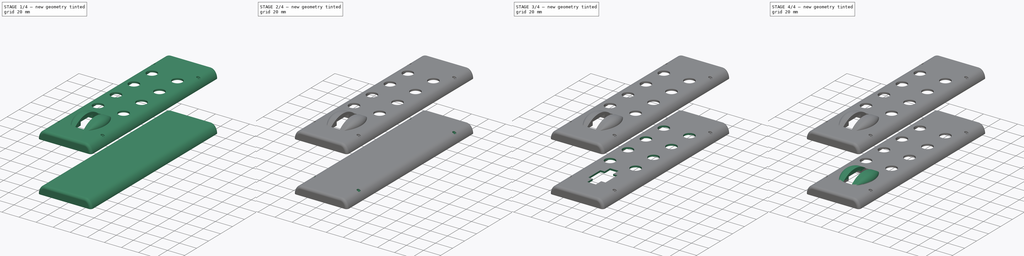
[diagram: build sequence overview — one tinted view per stage of 4, left to right]
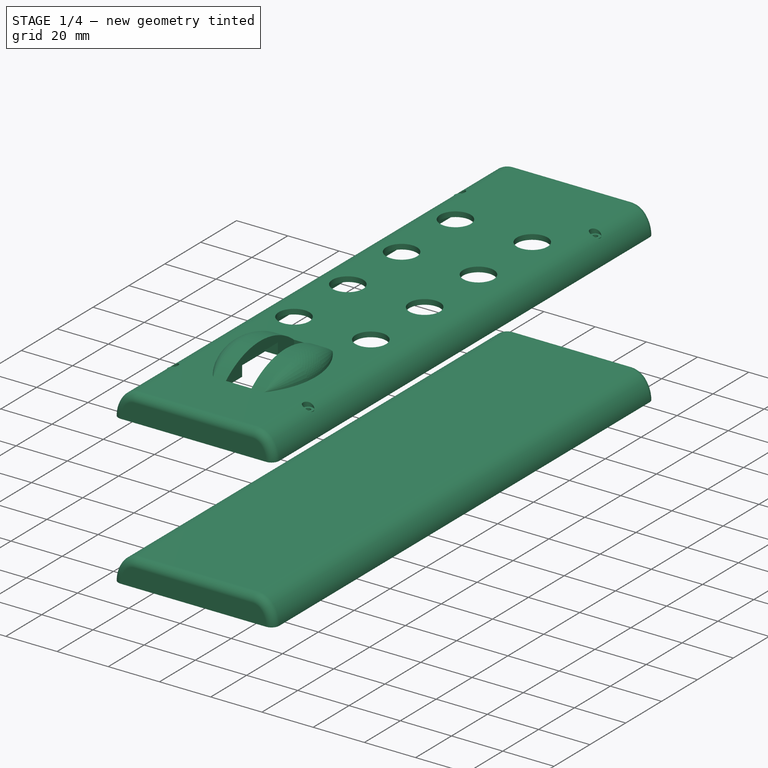
[diagram: stage 1 of 4 — iso view after this stage's code; geometry added in this stage tinted green]
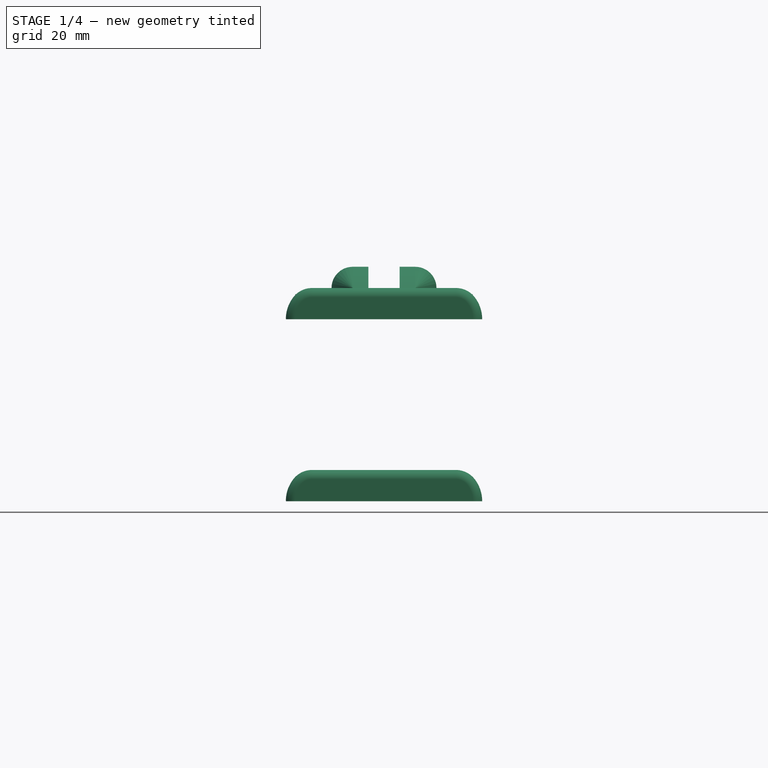
[diagram: stage 1 of 4 — front view after this stage's code; geometry added in this stage tinted green]
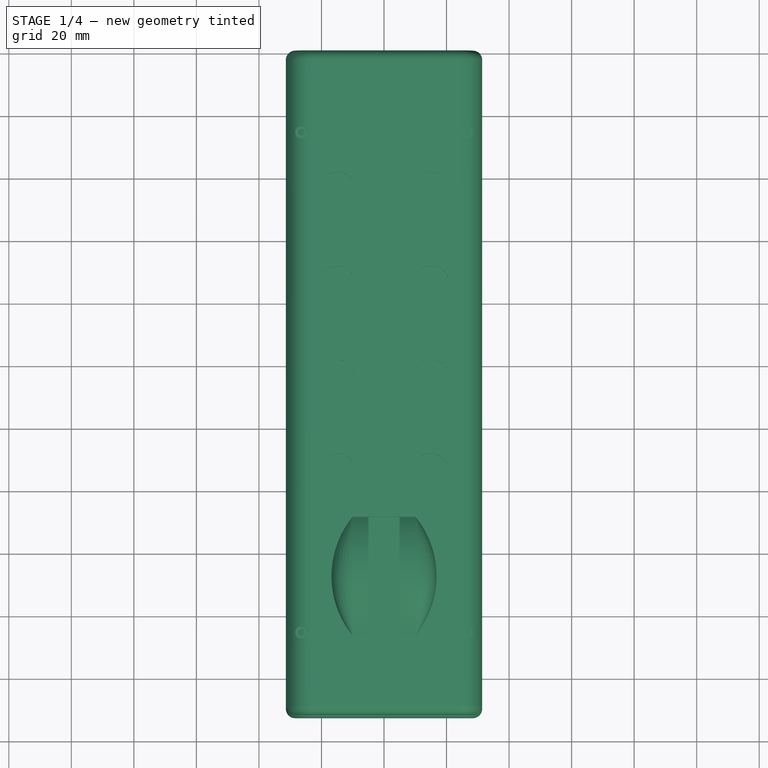
[diagram: stage 1 of 4 — top view after this stage's code; geometry added in this stage tinted green]
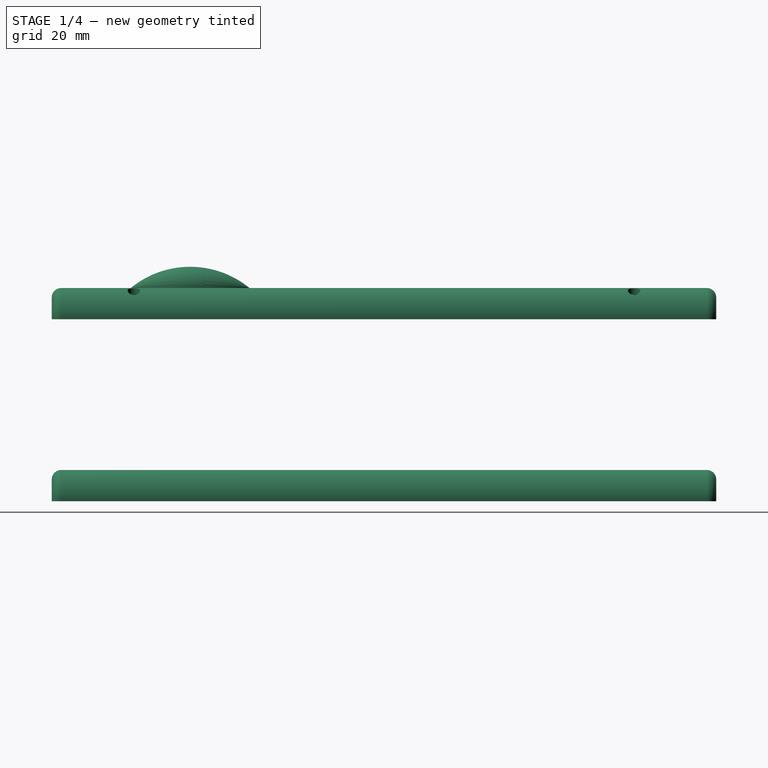
[diagram: stage 1 of 4 — right view after this stage's code; geometry added in this stage tinted green]
FCSTD DOCUMENT  (FreeCAD 0.20R28671 (Git))
Label: cubierta trasera
License: All rights reserved
LicenseURL: http://en.wikipedia.org/wiki/All_rights_reserved
objects: TechDraw::DrawViewDimension×24, Sketcher::SketchObject×10, PartDesign::Pocket×4, TechDraw::DrawViewAnnotation×4, PartDesign::Pad×3, TechDraw::DrawProjGroupItem×3, Part::Refine×2, TechDraw::DrawProjGroup×2, PartDesign::Fillet×1, PartDesign::Thickness×1, PartDesign::Plane×1, PartDesign::LinearPattern×1, PartDesign::Revolution×1, PartDesign::Mirrored×1, PartDesign::Body×1, TechDraw::DrawSVGTemplate×1, Part::FeaturePython×1, TechDraw::DrawViewBalloon×1, TechDraw::DrawViewSection×1, TechDraw::DrawViewClip×1, +2 more types
note: 37 computed .brp shape members not serialized (recipe doc carries the construction recipe); baked Part::Feature solids carry a one-line shape summary decoded from their .brp

FEATURE [Sketcher::SketchObject] Sketch
  FullyConstrained = true
  MapMode = 5
  Placement = pos=(0,0,0) rot=(1,0,0;1.5708rad)
  Support = -> [XZ_Plane]
  sketch-geometry (12):
    g0: LineSegment StartX=0 StartY=1.2153e-11 StartZ=0 EndX=-31.4 EndY=5.028e-13 EndZ=0
    g1: LineSegment StartX=0 StartY=1.2153e-11 StartZ=0 EndX=31.4 EndY=1.2153e-11 EndZ=0
    g2: LineSegment StartX=-23 StartY=10 StartZ=0 EndX=0 EndY=10 EndZ=0
    g3: LineSegment StartX=0 StartY=10 StartZ=0 EndX=23 EndY=10 EndZ=0
    g4: LineSegment StartX=-31.4 StartY=5.028e-13 StartZ=0 EndX=-28 EndY=0 EndZ=0
    g5: LineSegment StartX=-28 StartY=0 StartZ=0 EndX=-28 EndY=7 EndZ=0
    g6: ArcOfCircle CenterX=-23 CenterY=2.41173 CenterZ=0 NormalX=0 NormalY=0 NormalZ=1 AngleXU=0 Radius=7.58827 StartAngle=1.5708 EndAngle=2.49226
    g7: ArcOfCircle CenterX=-19.8231 CenterY=-1.6781e-06 CenterZ=0 NormalX=0 NormalY=0 NormalZ=1 AngleXU=0 Radius=11.5769 StartAngle=2.49226 EndAngle=3.14159
    g8: LineSegment StartX=-31.4 StartY=5.028e-13 StartZ=0 EndX=-31.4 EndY=7 EndZ=0
    g9: ArcOfCircle CenterX=23 CenterY=2.41173 CenterZ=0 NormalX=0 NormalY=0 NormalZ=1 AngleXU=0 Radius=7.58827 StartAngle=0.649332 EndAngle=1.5708
    g10: ArcOfCircle CenterX=19.8231 CenterY=7.13302e-06 CenterZ=0 NormalX=0 NormalY=0 NormalZ=1 AngleXU=0 Radius=11.5769 StartAngle=6.28318 EndAngle=6.93252
    g11: LineSegment StartX=31.4 StartY=1.2153e-11 StartZ=0 EndX=31.4 EndY=10 EndZ=0
  constraints (35):
    c: Coincident(g0,g-1)
    c: PointOnObject(g0,g-1)
    c: Coincident(g1,g0)
    c: Horizontal(g1)
    c: Equal(g1,g0)
    c: DistanceX(g0,g1) = 62.8
    c: Coincident(g3,g2)
    c: Horizontal(g3)
    c: Vertical(g0,g2)
    c: Equal(g2,g3)
    c: DistanceX(g2,g3) = 46
    c: DistanceY(g0,g2) = 10
    c: Horizontal(g2)
    c: Coincident(g4,g0)
    c: PointOnObject(g4,g0)
    c: Coincident(g5,g4)
    c: Vertical(g5)
    c: DistanceX(g0,g4) = 3.4
    c: DistanceY(g5,g5) = 7
    c: Tangent(g6,g2) = 1.5708
    c: Coincident(g7,g0)
    c: Horizontal(g6,g5)
    c: Tangent(g7,g6) = -1.5708
    c: Coincident(g8,g0)
    c: Vertical(g8)
    c: Tangent(g7,g8)
    c: Horizontal(g8,g5)
    c: Coincident(g10,g1)
    c: Tangent(g9,g3) = 1.5708
    c: Coincident(g11,g1)
    c: Vertical(g11)
    c: Horizontal(g11,g3)
    c: Tangent(g10,g11)
    c: Equal(g9,g6)
    c: Tangent(g9,g10) = -1.5708
FEATURE [PartDesign::Pad] Pad
  Direction = (0,-1,-2e-16)
  Length = 212.5
  Length2 = 100
  Placement = pos=(0,0,0) rot=(1,0,0;1.5708rad)
  Profile = -> Sketch
  Type = 0
FEATURE [PartDesign::Fillet] Fillet
  Base = -> Pad [Edge19,Edge18]
  BaseFeature = -> Pad
  Placement = pos=(0,0,0) rot=(1,0,0;1.5708rad)
  Radius = 3
  SupportTransform = false
  UseAllEdges = false
FEATURE [PartDesign::Body] Body
  Group = -> [Sketch,Pad,Fillet,Thickness,Sketch003,Sketch001,Pocket,DatumPlane,Sketch004,Pad001,Sketch005,Pocket001,LinearPattern,Sketch006,Pocket002,Sketch007,Pocket003,Sketch008,Pad002,Sketch009,Revolution,Mirrored]
  Origin = -> Origin
  Tip = -> Mirrored
FEATURE [Part::Refine] Body001
  Source = -> Body
FEATURE [TechDraw::DrawViewAnnotation] Annotation
  Font = osifont
  LineSpace = 80
  LockPosition = true
  MaxWidth = -1
  Rotation = 0
  ScaleType = 0
  Text = Vista A
  TextSize = 5
  TextStyle = 0
  X = 20
  Y = 18.902
FEATURE [TechDraw::DrawViewAnnotation] Annotation001
  Font = osifont
  LineSpace = 80
  LockPosition = true
  MaxWidth = -1
  Rotation = 0
  ScaleType = 0
  Text = Sección B-B'
  TextSize = 5
  TextStyle = 0
  X = 112
  Y = 58
FEATURE [TechDraw::DrawSVGTemplate] Template001
  EditableTexts = AUTHOR_NAME=Daniel García García; DATE=13-04-2022; DN=2; DOCUMENT_TYPE=Plano de Pieza; PN=1; REVISION=1; SCALE=1:1; SHEET=2/15; SIZE=A4; TITLELINE-1=Cubierta Trasera
  Height = 210
  Orientation = 1
  Width = 297
FEATURE [Part::FeaturePython] b_cubierta_trasera_001_001  label="cubierta trasera_002"  # a2plus imported part (geometry in sourceFile) (typed FeaturePython)
  Placement = pos=(0,0,58.1953) rot=(0,0,1;0rad)
  a2p_Version = V0.1
  fixedPosition = true
  objectType = a2pPart
  sourceFile = ./cubierta trasera.FCStd
  subassemblyImport = false
  timeLastImport = 1.64952e+09
  updateColors = true
FEATURE [Sketcher::SketchObject] Sketch010
  ExternalGeometry = -> [b_cubierta_trasera_001_001]
  FullyConstrained = true
  Placement = pos=(0,0,65) rot=(0,0,1;0rad)
  sketch-geometry (2):
    g0: LineSegment StartX=26.4 StartY=-26.25 StartZ=0 EndX=26.4 EndY=-186.25 EndZ=0
    g1: LineSegment StartX=26.4 StartY=-25.25 StartZ=0 EndX=26.4 EndY=-27.25 EndZ=0
  constraints (6):
    c: Coincident(g0,g-3)
    c: Coincident(g0,g-4)
    c: PointOnObject(g1,g-3)
    c: PointOnObject(g1,g0)
    c: Vertical(g1)
    c: PointOnObject(g1,g-3)
FEATURE [Part::Refine] b_cubierta_trasera_001_001001  label="cubierta trasera_003"
  Source = -> b_cubierta_trasera_001_001
FEATURE [TechDraw::DrawProjGroupItem] ProjItem  label="Front"
  CoarseView = false
  Direction = (-1,0,0)
  Focus = 100
  HardHidden = false
  IsoCount = 0
  IsoHidden = false
  IsoVisible = false
  LockPosition = true
  Perspective = false
  Rotation = 0
  RotationVector = (0,1,0)
  ScaleType = 2
  SeamHidden = false
  SeamVisible = true
  SmoothHidden = false
  SmoothVisible = true
  Source = -> [b_cubierta_trasera_001_001001,Sketch010]
  Type = 0
  X = 0
  XDirection = (0,1,0)
  Y = 0
FEATURE [TechDraw::DrawViewBalloon] Balloon
  BubbleShape = 0
  EndType = 0
  EndTypeScale = 1
  KinkLength = 5
  LockPosition = false
  OriginX = -110
  OriginY = 5
  Rotation = 0
  ScaleType = 0
  ShapeScale = 1
  SourceView = -> ProjItem
  Text = A
  TextWrapLen = -1
  X = -137.481
  Y = 5.3198
FEATURE [TechDraw::DrawViewDimension] Dimension001
  AngleOverride = false
  Arbitrary = false
  ArbitraryTolerances = false
  EqualTolerance = true
  ExtensionAngle = 0
  FormatSpec = %.2w
  FormatSpecOverTolerance = %+.2w
  FormatSpecUnderTolerance = %+.2w
  Inverted = false
  LineAngle = 0
  LockPosition = false
  MeasureType = 1
  OverTolerance = 0
  References2D = -> [ProjItem]
  Rotation = 0
  ScaleType = 0
  TheoreticalExact = false
  Type = 1
  UnderTolerance = 0
  X = -0.949436
  Y = 20.0692
FEATURE [TechDraw::DrawViewDimension] Dimension007
  AngleOverride = false
  Arbitrary = false
  ArbitraryTolerances = false
  EqualTolerance = true
  ExtensionAngle = 0
  FormatSpec = R%.2w
  FormatSpecOverTolerance = %+.2w
  FormatSpecUnderTolerance = %+.2w
  Inverted = false
  LineAngle = 0
  LockPosition = false
  MeasureType = 1
  OverTolerance = 0
  References2D = -> [ProjItem]
  Rotation = 0
  ScaleType = 0
  TheoreticalExact = false
  Type = 4
  UnderTolerance = 0
  X = -34.0907
  Y = -8.95603
FEATURE [TechDraw::DrawViewDimension] Dimension019
  AngleOverride = false
  Arbitrary = false
  ArbitraryTolerances = false
  EqualTolerance = true
  ExtensionAngle = 0
  FormatSpec = %.2w
  FormatSpecOverTolerance = %+.2w
  FormatSpecUnderTolerance = %+.2w
  Inverted = false
  LineAngle = 0
  LockPosition = false
  MeasureType = 1
  OverTolerance = 0
  References2D = -> [ProjItem]
  Rotation = 0
  ScaleType = 0
  TheoreticalExact = false
  Type = 1
  UnderTolerance = 0
  X = -91.0139
  Y = -19.964
FEATURE [TechDraw::DrawViewDimension] Dimension021
  AngleOverride = false
  Arbitrary = false
  ArbitraryTolerances = false
  EqualTolerance = true
  ExtensionAngle = 0
  FormatSpec = %.2w
  FormatSpecOverTolerance = %+.2w
  FormatSpecUnderTolerance = %+.2w
  Inverted = false
  LineAngle = 0
  LockPosition = false
  MeasureType = 1
  OverTolerance = 0
  References2D = -> [ProjItem]
  Rotation = 0
  ScaleType = 0
  TheoreticalExact = false
  Type = 2
  UnderTolerance = 0
  X = 115.769
  Y = 5.89131
FEATURE [TechDraw::DrawViewDimension] Dimension022
  AngleOverride = false
  Arbitrary = false
  ArbitraryTolerances = false
  EqualTolerance = true
  ExtensionAngle = 0
  FormatSpec = ∅%.2w
  FormatSpecOverTolerance = %+.2w
  FormatSpecUnderTolerance = %+.2w
  Inverted = false
  LineAngle = 0
  LockPosition = false
  MeasureType = 1
  OverTolerance = 0
  References2D = -> [ProjItem]
  Rotation = 0
  ScaleType = 0
  TheoreticalExact = false
  Type = 1
  UnderTolerance = 0
  X = -86.4268
  Y = -7.9974
FEATURE [TechDraw::DrawViewDimension] Dimension023
  AngleOverride = false
  Arbitrary = false
  ArbitraryTolerances = false
  EqualTolerance = true
  ExtensionAngle = 0
  FormatSpec = ∅%.2w
  FormatSpecOverTolerance = %+.2w
  FormatSpecUnderTolerance = %+.2w
  Inverted = false
  LineAngle = 0
  LockPosition = false
  MeasureType = 1
  OverTolerance = 0
  References2D = -> [ProjItem]
  Rotation = 0
  ScaleType = 0
  TheoreticalExact = false
  Type = 1
  UnderTolerance = 0
  X = 86.4223
  Y = -4.07236
FEATURE [TechDraw::DrawViewDimension] Dimension024
  AngleOverride = false
  Arbitrary = false
  ArbitraryTolerances = false
  EqualTolerance = true
  ExtensionAngle = 0
  FormatSpec = %.2w
  FormatSpecOverTolerance = %+.2w
  FormatSpecUnderTolerance = %+.2w
  Inverted = false
  LineAngle = 0
  LockPosition = false
  MeasureType = 1
  OverTolerance = 0
  References2D = -> [ProjItem]
  Rotation = 0
  ScaleType = 0
  TheoreticalExact = false
  Type = 1
  UnderTolerance = 0
  X = -0.722632
  Y = -19.982
FEATURE [TechDraw::DrawProjGroupItem] ProjItem001  label="Top"
  CoarseView = false
  Direction = (0,0,-1)
  Focus = 100
  HardHidden = true
  IsoCount = 0
  IsoHidden = true
  IsoVisible = false
  LockPosition = true
  Perspective = false
  Rotation = 0
  RotationVector = (1,0,0)
  ScaleType = 2
  SeamHidden = true
  SeamVisible = true
  SmoothHidden = true
  SmoothVisible = true
  Source = -> [b_cubierta_trasera_001_001001]
  Type = 4
  X = 0
  XDirection = (0,1,0)
  Y = -70.4246
FEATURE [TechDraw::DrawViewDimension] Dimension
  AngleOverride = false
  Arbitrary = false
  ArbitraryTolerances = false
  EqualTolerance = true
  ExtensionAngle = 0
  FormatSpec = %.2w
  FormatSpecOverTolerance = %+.2w
  FormatSpecUnderTolerance = %+.2w
  Inverted = false
  LineAngle = 0
  LockPosition = false
  MeasureType = 1
  OverTolerance = 0
  References2D = -> [ProjItem001]
  Rotation = 0
  ScaleType = 0
  TheoreticalExact = false
  Type = 2
  UnderTolerance = 0
  X = -125.564
  Y = -2.88014
FEATURE [TechDraw::DrawViewDimension] Dimension002
  AngleOverride = false
  Arbitrary = false
  ArbitraryTolerances = false
  EqualTolerance = true
  ExtensionAngle = 0
  FormatSpec = ⌀%.2w
  FormatSpecOverTolerance = %+.2w
  FormatSpecUnderTolerance = %+.2w
  Inverted = false
  LineAngle = 0
  LockPosition = false
  MeasureType = 1
  OverTolerance = 0
  References2D = -> [ProjItem001]
  Rotation = 0
  ScaleType = 0
  TheoreticalExact = false
  Type = 5
  UnderTolerance = 0
  X = -14.2415
  Y = 10.2245
FEATURE [TechDraw::DrawViewDimension] Dimension003
  AngleOverride = false
  Arbitrary = false
  ArbitraryTolerances = false
  EqualTolerance = true
  ExtensionAngle = 0
  FormatSpec = %.2w
  FormatSpecOverTolerance = %+.2w
  FormatSpecUnderTolerance = %+.2w
  Inverted = false
  LineAngle = 0
  LockPosition = false
  MeasureType = 1
  OverTolerance = 0
  References2D = -> [ProjItem001]
  Rotation = 0
  ScaleType = 0
  TheoreticalExact = false
  Type = 1
  UnderTolerance = 0
  X = -61.6559
  Y = 3.63404
FEATURE [TechDraw::DrawViewDimension] Dimension004
  AngleOverride = false
  Arbitrary = false
  ArbitraryTolerances = false
  EqualTolerance = true
  ExtensionAngle = 0
  FormatSpec = %.2w
  FormatSpecOverTolerance = %+.2w
  FormatSpecUnderTolerance = %+.2w
  Inverted = false
  LineAngle = 0
  LockPosition = false
  MeasureType = 1
  OverTolerance = 0
  References2D = -> [ProjItem001]
  Rotation = 0
  ScaleType = 0
  TheoreticalExact = false
  Type = 2
  UnderTolerance = 0
  X = -39.1789
  Y = -5.3663
FEATURE [TechDraw::DrawViewDimension] Dimension005
  AngleOverride = false
  Arbitrary = false
  ArbitraryTolerances = false
  EqualTolerance = true
  ExtensionAngle = 0
  FormatSpec = %.2w
  FormatSpecOverTolerance = %+.2w
  FormatSpecUnderTolerance = %+.2w
  Inverted = false
  LineAngle = 0
  LockPosition = false
  MeasureType = 1
  OverTolerance = 0
  References2D = -> [ProjItem001]
  Rotation = 0
  ScaleType = 0
  TheoreticalExact = false
  Type = 2
  UnderTolerance = 0
  X = -85.8485
  Y = 2.16562
FEATURE [TechDraw::DrawViewDimension] Dimension006
  AngleOverride = false
  Arbitrary = false
  ArbitraryTolerances = false
  EqualTolerance = true
  ExtensionAngle = 0
  FormatSpec = %.2w
  FormatSpecOverTolerance = %+.2w
  FormatSpecUnderTolerance = %+.2w
  Inverted = false
  LineAngle = 0
  LockPosition = false
  MeasureType = 1
  OverTolerance = 0
  References2D = -> [ProjItem001]
  Rotation = 0
  ScaleType = 0
  TheoreticalExact = false
  Type = 1
  UnderTolerance = 0
  X = -62.6251
  Y = 22.7719
FEATURE [TechDraw::DrawViewDimension] Dimension008
  AngleOverride = false
  Arbitrary = false
  ArbitraryTolerances = false
  EqualTolerance = true
  ExtensionAngle = 0
  FormatSpec = R%.2w
  FormatSpecOverTolerance = %+.2w
  FormatSpecUnderTolerance = %+.2w
  Inverted = false
  LineAngle = 0
  LockPosition = false
  MeasureType = 1
  OverTolerance = 0
  References2D = -> [ProjItem001]
  Rotation = 0
  ScaleType = 0
  TheoreticalExact = false
  Type = 4
  UnderTolerance = 0
  X = -89.2714
  Y = -15.8897
FEATURE [TechDraw::DrawViewDimension] Dimension009
  AngleOverride = false
  Arbitrary = false
  ArbitraryTolerances = false
  EqualTolerance = true
  ExtensionAngle = 0
  FormatSpec = R%.2w
  FormatSpecOverTolerance = %+.2w
  FormatSpecUnderTolerance = %+.2w
  Inverted = false
  LineAngle = 0
  LockPosition = false
  MeasureType = 1
  OverTolerance = 0
  References2D = -> [ProjItem001]
  Rotation = 0
  ScaleType = 0
  TheoreticalExact = false
  Type = 4
  UnderTolerance = 0
  X = -115.379
  Y = -19.6926
FEATURE [TechDraw::DrawViewDimension] Dimension010
  AngleOverride = false
  Arbitrary = false
  ArbitraryTolerances = false
  EqualTolerance = true
  ExtensionAngle = 0
  FormatSpec = %.2w
  FormatSpecOverTolerance = %+.2w
  FormatSpecUnderTolerance = %+.2w
  Inverted = false
  LineAngle = 0
  LockPosition = false
  MeasureType = 1
  OverTolerance = 0
  References2D = -> [ProjItem001]
  Rotation = 0
  ScaleType = 0
  TheoreticalExact = false
  Type = 2
  UnderTolerance = 0
  X = 76.4726
  Y = 1.05548
FEATURE [TechDraw::DrawViewDimension] Dimension011
  AngleOverride = false
  Arbitrary = false
  ArbitraryTolerances = false
  EqualTolerance = true
  ExtensionAngle = 0
  FormatSpec = %.2w
  FormatSpecOverTolerance = %+.2w
  FormatSpecUnderTolerance = %+.2w
  Inverted = false
  LineAngle = 0
  LockPosition = false
  MeasureType = 1
  OverTolerance = 0
  References2D = -> [ProjItem001]
  Rotation = 0
  ScaleType = 0
  TheoreticalExact = false
  Type = 1
  UnderTolerance = 0
  X = 45.3833
  Y = 6.14342
FEATURE [TechDraw::DrawViewDimension] Dimension012
  AngleOverride = false
  Arbitrary = false
  ArbitraryTolerances = false
  EqualTolerance = true
  ExtensionAngle = 0
  FormatSpec = %.2w
  FormatSpecOverTolerance = %+.2w
  FormatSpecUnderTolerance = %+.2w
  Inverted = false
  LineAngle = 0
  LockPosition = false
  MeasureType = 1
  OverTolerance = 0
  References2D = -> [ProjItem001]
  Rotation = 0
  ScaleType = 0
  TheoreticalExact = false
  Type = 2
  UnderTolerance = 0
  X = 115.186
  Y = 26.5667
FEATURE [TechDraw::DrawViewDimension] Dimension013
  AngleOverride = false
  Arbitrary = false
  ArbitraryTolerances = false
  EqualTolerance = true
  ExtensionAngle = 0
  FormatSpec = %.2w
  FormatSpecOverTolerance = %+.2w
  FormatSpecUnderTolerance = %+.2w
  Inverted = false
  LineAngle = 0
  LockPosition = false
  MeasureType = 1
  OverTolerance = 0
  References2D = -> [ProjItem001]
  Rotation = 0
  ScaleType = 0
  TheoreticalExact = false
  Type = 1
  UnderTolerance = 0
  X = 82.2848
  Y = 44.181
FEATURE [TechDraw::DrawViewDimension] Dimension014
  AngleOverride = false
  Arbitrary = false
  ArbitraryTolerances = false
  EqualTolerance = true
  ExtensionAngle = 0
  FormatSpec = %.2w
  FormatSpecOverTolerance = %+.2w
  FormatSpecUnderTolerance = %+.2w
  Inverted = false
  LineAngle = 0
  LockPosition = false
  MeasureType = 1
  OverTolerance = 0
  References2D = -> [ProjItem001]
  Rotation = 0
  ScaleType = 0
  TheoreticalExact = false
  Type = 2
  UnderTolerance = 0
  X = 89.2596
  Y = 2.5
FEATURE [TechDraw::DrawViewDimension] Dimension020
  AngleOverride = false
  Arbitrary = false
  ArbitraryTolerances = false
  EqualTolerance = true
  ExtensionAngle = 0
  FormatSpec = %.2w
  FormatSpecOverTolerance = %+.2w
  FormatSpecUnderTolerance = %+.2w
  Inverted = false
  LineAngle = 0
  LockPosition = false
  MeasureType = 1
  OverTolerance = 0
  References2D = -> [ProjItem001]
  Rotation = 0
  ScaleType = 0
  TheoreticalExact = false
  Type = 2
  UnderTolerance = 0
  X = -94.6134
  Y = 2.01849
FEATURE [TechDraw::DrawProjGroup] ProjGroup
  Anchor = -> ProjItem
  AutoDistribute = true
  LockPosition = true
  ProjectionType = 0
  Rotation = 0
  ScaleType = 0
  Source = -> [b_cubierta_trasera_001_001001]
  Views = -> [ProjItem,ProjItem001]
  X = 161.17
  Y = 171.195
  spacingX = 15
  spacingY = 15
FEATURE [TechDraw::DrawProjGroupItem] ProjItem002  label="Vista A"
  CoarseView = false
  Direction = (1e-16,-1,0)
  Focus = 100
  HardHidden = false
  IsoCount = 0
  IsoHidden = false
  IsoVisible = false
  LockPosition = true
  Perspective = false
  Rotation = 0
  RotationVector = (0,1,0)
  ScaleType = 2
  SeamHidden = false
  SeamVisible = true
  SmoothHidden = false
  SmoothVisible = true
  Source = -> [b_cubierta_trasera_001_001001]
  Type = 0
  X = 0
  XDirection = (1,1e-16,0)
  Y = 0
FEATURE [TechDraw::DrawViewDimension] Dimension025
  AngleOverride = false
  Arbitrary = false
  ArbitraryTolerances = false
  EqualTolerance = true
  ExtensionAngle = 0
  FormatSpec = %.2w
  FormatSpecOverTolerance = %+.2w
  FormatSpecUnderTolerance = %+.2w
  Inverted = false
  LineAngle = 0
  LockPosition = false
  MeasureType = 1
  OverTolerance = 0
  References2D = -> [ProjItem002]
  Rotation = 0
  ScaleType = 0
  TheoreticalExact = false
  Type = 1
  UnderTolerance = 0
  X = -3.87982
  Y = 16.1102
FEATURE [TechDraw::DrawProjGroup] ProjGroup001
  Anchor = -> ProjItem002
  AutoDistribute = true
  LockPosition = true
  ProjectionType = 0
  Rotation = 0
  ScaleType = 0
  Source = -> [b_cubierta_trasera_001_001001]
  Views = -> [ProjItem002]
  X = 45
  Y = 38
  spacingX = 15
  spacingY = 15
FEATURE [TechDraw::DrawViewSection] SectionView  label="Section B - B"
  BaseView = -> ProjItem002
  CoarseView = false
  CutSurfaceDisplay = 2
  Direction = (-1,-1e-16,0)
  FileGeomPattern = <path>
  FileHatchPattern = <path>
  Focus = 100
  FuseBeforeCut = false
  HardHidden = false
  HatchScale = 1
  IsoCount = 0
  IsoHidden = false
  IsoVisible = false
  LockPosition = true
  NameGeomPattern = Diamante
  Perspective = false
  Rotation = 0
  ScaleType = 2
  SeamHidden = false
  SeamVisible = true
  SectionDirection = 0
  SectionNormal = (-1,-1e-16,0)
  SectionOrigin = (8,-106.25,65.59)
  SectionSymbol = B
  SmoothHidden = false
  SmoothVisible = true
  Source = -> [b_cubierta_trasera_001_001001]
  X = -62
  XDirection = (1e-16,-1,0)
  Y = 0
FEATURE [TechDraw::DrawViewDimension] Dimension026
  AngleOverride = false
  Arbitrary = false
  ArbitraryTolerances = false
  EqualTolerance = true
  ExtensionAngle = 0
  FormatSpec = %.2w
  FormatSpecOverTolerance = %+.2w
  FormatSpecUnderTolerance = %+.2w
  Inverted = false
  LineAngle = 0
  LockPosition = false
  MeasureType = 1
  OverTolerance = 0
  References2D = -> [SectionView]
  Rotation = 0
  ScaleType = 0
  TheoreticalExact = false
  Type = 2
  UnderTolerance = 0
  X = 82.195
  Y = 12.6113
FEATURE [TechDraw::DrawViewDimension] Dimension027
  AngleOverride = false
  Arbitrary = false
  ArbitraryTolerances = false
  EqualTolerance = true
  ExtensionAngle = 0
  FormatSpec = %.2w
  FormatSpecOverTolerance = %+.2w
  FormatSpecUnderTolerance = %+.2w
  Inverted = false
  LineAngle = 0
  LockPosition = false
  MeasureType = 1
  OverTolerance = 0
  References2D = -> [SectionView]
  Rotation = 0
  ScaleType = 0
  TheoreticalExact = false
  Type = 2
  UnderTolerance = 0
  X = 40.0902
  Y = 10.8758
FEATURE [TechDraw::DrawViewClip] Clip
  Height = 30
  LockPosition = true
  Rotation = 0
  ScaleType = 0
  ShowFrame = false
  Views = -> [SectionView]
  Width = 55
  X = 112
  Y = 38
FEATURE [TechDraw::DrawViewAnnotation] Annotation002
  Font = osifont
  LineSpace = 80
  LockPosition = false
  MaxWidth = -1
  Rotation = 0
  ScaleType = 0
  Text = Default Text
  TextSize = 5
  TextStyle = 0
  X = 201.008
  Y = 54.8431
FEATURE [TechDraw::DrawViewSymbol] Symbol
  LockPosition = false
  Rotation = 0
  Scale = 0.3
  ScaleType = 2
  Symbol = <blob: 2444 chars omitted>
  X = 217.487
  Y = 36.9001
FEATURE [TechDraw::DrawViewAnnotation] Annotation003
  Font = osifont
  LineSpace = 80
  LockPosition = false
  MaxWidth = -1
  Rotation = 0
  ScaleType = 0
  Text = '
  TextSize = 5
  TextStyle = 0
  X = 55.7407
  Y = 9.80915
FEATURE [TechDraw::DrawPage] Page001  label="Cubierta Trasera"
  KeepUpdated = true
  NextBalloonIndex = 4
  ProjectionType = 0
  Template = -> Template001
  Views = -> [ProjGroup,Dimension,Dimension001,Dimension002,Dimension003,Dimension004,Dimension005,Dimension006,Dimension007,Dimension008,Dimension009,Dimension010,Dimension011,Dimension012,Dimension013,Dimension014,Dimension019,Dimension020,Dimension021,Dimension022,Dimension023,Dimension024,ProjGroup001,Balloon,Dimension025,SectionView,Clip,Annotation,Annotation001,Dimension026,Dimension027,Symbol,+1 more]
note: 2 file-system paths scrubbed to <path> (originals preserved in the JSON sidecar)
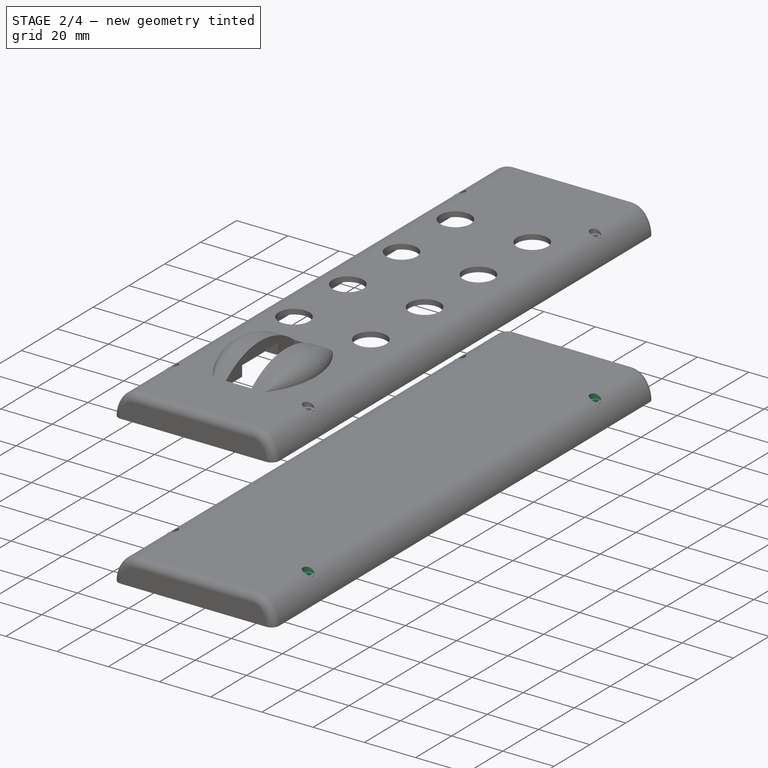
[diagram: stage 2 of 4 — iso view after this stage's code; geometry added in this stage tinted green]
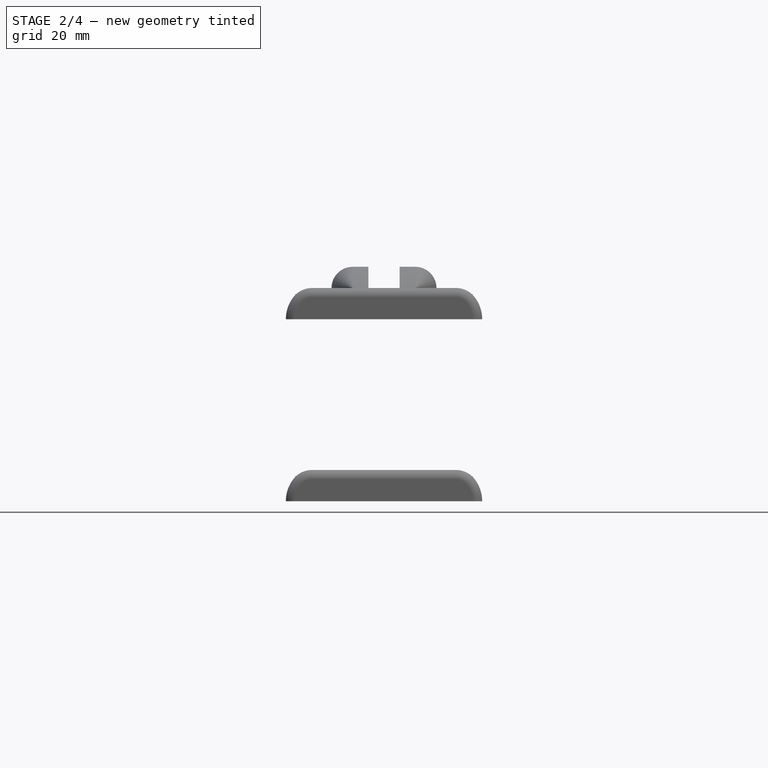
[diagram: stage 2 of 4 — front view after this stage's code; geometry added in this stage tinted green]
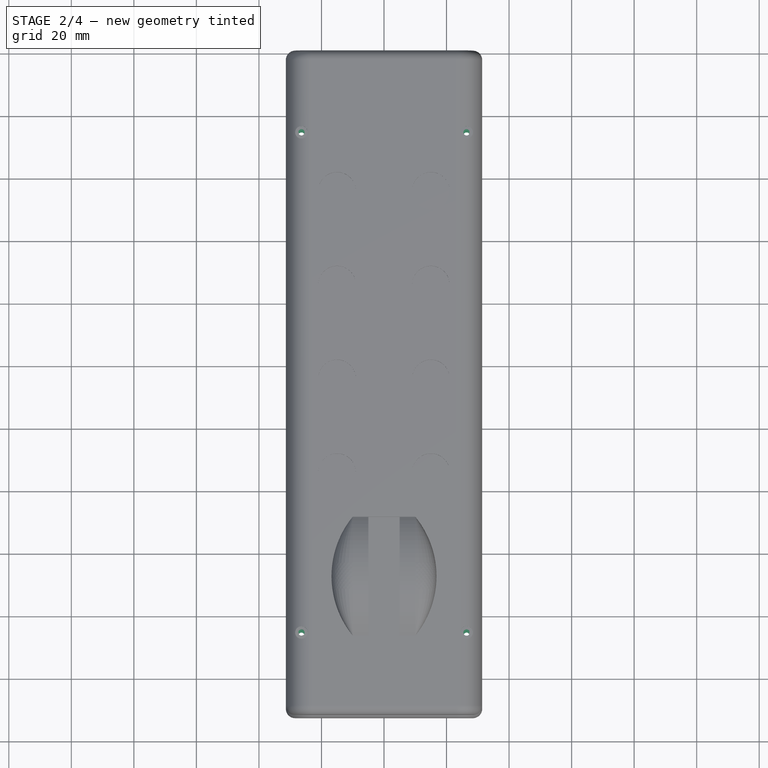
[diagram: stage 2 of 4 — top view after this stage's code; geometry added in this stage tinted green]
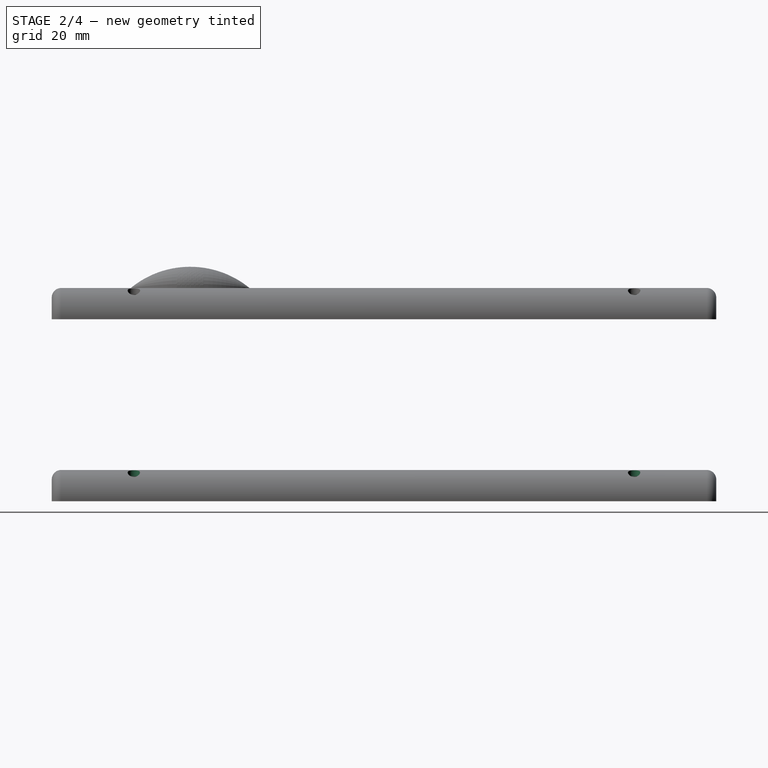
[diagram: stage 2 of 4 — right view after this stage's code; geometry added in this stage tinted green]
FEATURE [PartDesign::Thickness] Thickness
  Base = -> Fillet [Face7,Face1]
  BaseFeature = -> Fillet
  Intersection = false
  Join = 0
  Mode = 0
  Reversed = true
  SupportTransform = false
  Value = 2
FEATURE [Sketcher::SketchObject] Sketch003
  ExternalGeometry = -> [Thickness]
  FullyConstrained = true
  MapMode = 5
  Placement = pos=(0,0,1.2153e-11) rot=(1,0,0;3.14159rad)
  Support = -> [Thickness]
  sketch-geometry (6):
    g0: LineSegment StartX=-31.4 StartY=191.25 StartZ=0 EndX=31.4 EndY=191.25 EndZ=0
    g1: LineSegment StartX=31.4 StartY=191.25 StartZ=0 EndX=31.4 EndY=21.25 EndZ=0
    g2: LineSegment StartX=31.4 StartY=21.25 StartZ=0 EndX=-31.4 EndY=21.25 EndZ=0
    g3: LineSegment StartX=-31.4 StartY=21.25 StartZ=0 EndX=-31.4 EndY=191.25 EndZ=0
    g4: LineSegment StartX=0 StartY=212.5 StartZ=0 EndX=0 EndY=191.25 EndZ=0
    g5: LineSegment StartX=0 StartY=0 StartZ=0 EndX=0 EndY=21.25 EndZ=0
  constraints (18):
    c: Coincident(g0,g1)
    c: Coincident(g1,g2)
    c: Coincident(g2,g3)
    c: Coincident(g3,g0)
    c: Horizontal(g0)
    c: Horizontal(g2)
    c: Vertical(g1)
    c: Vertical(g3)
    c: PointOnObject(g0,g-4)
    c: PointOnObject(g1,g-5)
    c: Coincident(g4,g-3)
    c: PointOnObject(g4,g0)
    c: Vertical(g4)
    c: Coincident(g5,g-1)
    c: PointOnObject(g5,g2)
    c: Vertical(g5)
    c: Equal(g4,g5)
    c: DistanceY(g1,g0) = 170
FEATURE [Sketcher::SketchObject] Sketch001
  ExternalGeometry = -> [Thickness,Sketch003]
  FullyConstrained = true
  MapMode = 5
  Placement = pos=(0,0,1.2153e-11) rot=(1,0,0;3.14159rad)
  Support = -> [Thickness]
  sketch-geometry (12):
    g0: LineSegment StartX=-31.4 StartY=186.25 StartZ=0 EndX=-26.4 EndY=186.25 EndZ=0
    g1: LineSegment StartX=-26.4 StartY=186.25 StartZ=0 EndX=-26.4 EndY=191.25 EndZ=0
    g2: LineSegment StartX=26.4 StartY=191.25 StartZ=0 EndX=26.4 EndY=186.25 EndZ=0
    g3: LineSegment StartX=26.4 StartY=186.25 StartZ=0 EndX=31.4 EndY=186.25 EndZ=0
    g4: LineSegment StartX=-31.4 StartY=26.25 StartZ=0 EndX=-26.4 EndY=26.25 EndZ=0
    g5: LineSegment StartX=-26.4 StartY=26.25 StartZ=0 EndX=-26.4 EndY=21.25 EndZ=0
    g6: LineSegment StartX=26.4 StartY=21.25 StartZ=0 EndX=26.4 EndY=26.25 EndZ=0
    g7: LineSegment StartX=26.4 StartY=26.25 StartZ=0 EndX=31.4 EndY=26.25 EndZ=0
    g8: Circle CenterX=-26.4 CenterY=186.25 CenterZ=0 NormalX=0 NormalY=0 NormalZ=1 AngleXU=0 Radius=2
    g9: Circle CenterX=26.4 CenterY=186.25 CenterZ=0 NormalX=0 NormalY=0 NormalZ=1 AngleXU=0 Radius=2
    g10: Circle CenterX=-26.4 CenterY=26.25 CenterZ=0 NormalX=0 NormalY=0 NormalZ=1 AngleXU=0 Radius=2
    g11: Circle CenterX=26.4 CenterY=26.25 CenterZ=0 NormalX=0 NormalY=0 NormalZ=1 AngleXU=0 Radius=2
  constraints (36):
    c: PointOnObject(g0,g-5)
    c: PointOnObject(g3,g-6)
    c: PointOnObject(g7,g-6)
    c: PointOnObject(g4,g-5)
    c: Vertical(g5)
    c: Horizontal(g4)
    c: Vertical(g6)
    c: Horizontal(g7)
    c: Vertical(g1)
    c: Horizontal(g0)
    c: Horizontal(g3)
    c: Vertical(g2)
    c: Coincident(g9,g2)
    c: Coincident(g9,g3)
    c: Coincident(g1,g8)
    c: Coincident(g0,g8)
    c: Coincident(g10,g4)
    c: Coincident(g10,g5)
    c: Coincident(g11,g6)
    c: Coincident(g11,g7)
    c: Equal(g7,g6)
    c: Equal(g6,g5)
    c: Equal(g5,g4)
    c: Equal(g4,g3)
    c: Equal(g3,g2)
    c: Equal(g2,g1)
    c: Equal(g1,g0)
    c: DistanceY(g1,g1) = 5
    c: Equal(g8,g9)
    c: Equal(g9,g11)
    c: Equal(g11,g10)
    c: Diameter(g10) = 4
    c: PointOnObject(g5,g-9)
    c: PointOnObject(g6,g-9)
    c: PointOnObject(g1,g-10)
    c: PointOnObject(g2,g-10)
FEATURE [PartDesign::Pocket] Pocket
  BaseFeature = -> Thickness
  Direction = (1,1,1)
  Length = 5
  Length2 = 100
  Profile = -> Sketch001
  Type = 1
FEATURE [PartDesign::Plane] DatumPlane
  AttachmentOffset = pos=(0,0,-7) rot=(0,0,1;0rad)
  Length = 87.2254
  MapMode = 5
  Placement = pos=(-2.5971e-12,0,7) rot=(1,0,0;3.14159rad)
  ResizeMode = 0
  Support = -> [Pocket]
  Width = 261.925
FEATURE [Sketcher::SketchObject] Sketch004
  ExternalGeometry = -> [Pocket]
  FullyConstrained = true
  MapMode = 5
  Placement = pos=(-2.5971e-12,0,7) rot=(1,0,0;3.14159rad)
  Support = -> [DatumPlane]
  sketch-geometry (8):
    g0: Circle CenterX=-26.4 CenterY=186.25 CenterZ=0 NormalX=0 NormalY=0 NormalZ=1 AngleXU=0 Radius=2
    g1: Circle CenterX=26.4 CenterY=186.25 CenterZ=0 NormalX=0 NormalY=0 NormalZ=1 AngleXU=0 Radius=2
    g2: Circle CenterX=-26.4 CenterY=26.25 CenterZ=0 NormalX=0 NormalY=0 NormalZ=1 AngleXU=0 Radius=2
    g3: Circle CenterX=26.4 CenterY=26.25 CenterZ=0 NormalX=0 NormalY=0 NormalZ=1 AngleXU=0 Radius=2
    g4: Circle CenterX=26.4 CenterY=26.25 CenterZ=0 NormalX=0 NormalY=0 NormalZ=1 AngleXU=0 Radius=1
    g5: Circle CenterX=-26.4 CenterY=26.25 CenterZ=0 NormalX=0 NormalY=0 NormalZ=1 AngleXU=0 Radius=1
    g6: Circle CenterX=-26.4 CenterY=186.25 CenterZ=0 NormalX=0 NormalY=0 NormalZ=1 AngleXU=0 Radius=1
    g7: Circle CenterX=26.4 CenterY=186.25 CenterZ=0 NormalX=0 NormalY=0 NormalZ=1 AngleXU=0 Radius=1
  constraints (20):
    c: PointOnObject(g-8,g0)
    c: PointOnObject(g-8,g0)
    c: PointOnObject(g-7,g0)
    c: PointOnObject(g-10,g1)
    c: PointOnObject(g-9,g1)
    c: PointOnObject(g-10,g1)
    c: PointOnObject(g-3,g2)
    c: PointOnObject(g-4,g2)
    c: PointOnObject(g-4,g2)
    c: PointOnObject(g-5,g3)
    c: PointOnObject(g-6,g3)
    c: PointOnObject(g-5,g3)
    c: Coincident(g4,g3)
    c: Coincident(g5,g2)
    c: Coincident(g6,g0)
    c: Coincident(g7,g1)
    c: Equal(g6,g7)
    c: Equal(g7,g4)
    c: Equal(g4,g5)
    c: Diameter(g5) = 2
FEATURE [PartDesign::Pad] Pad001
  BaseFeature = -> Pocket
  Direction = (3.71e-13,0,-1)
  Length = 1
  Length2 = 100
  Profile = -> Sketch004
  Reversed = true
  Type = 0
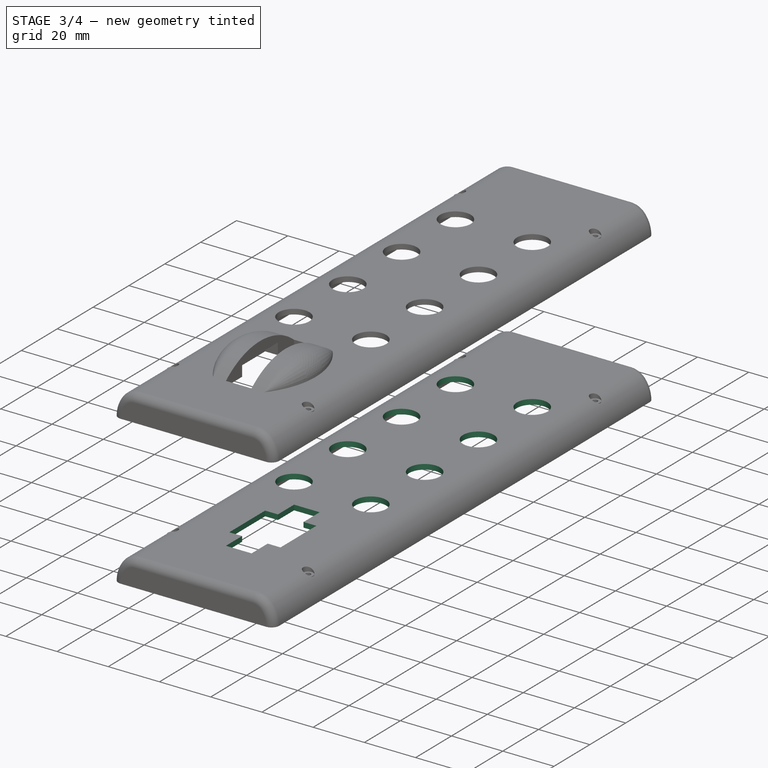
[diagram: stage 3 of 4 — iso view after this stage's code; geometry added in this stage tinted green]
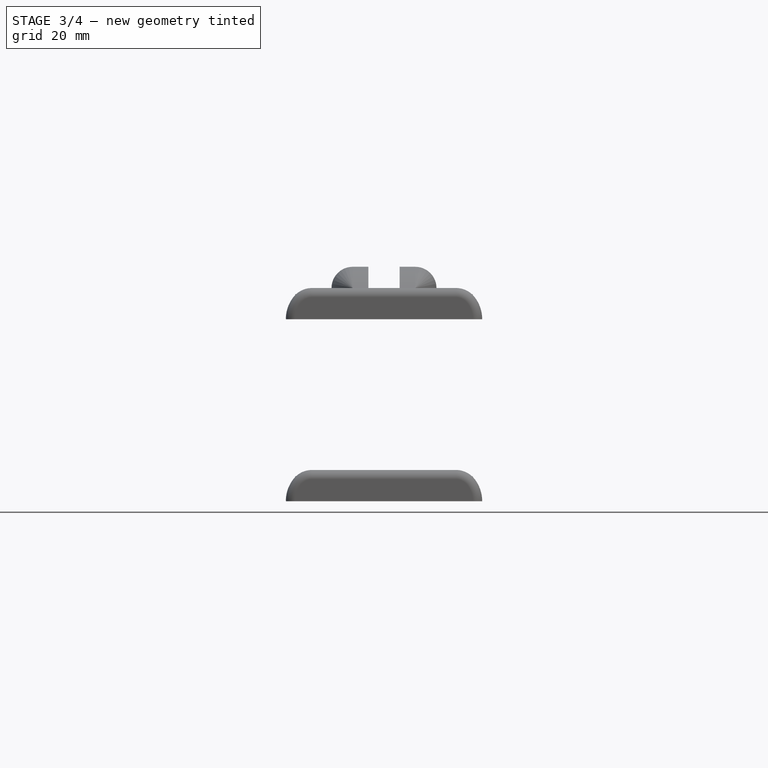
[diagram: stage 3 of 4 — front view after this stage's code; geometry added in this stage tinted green]
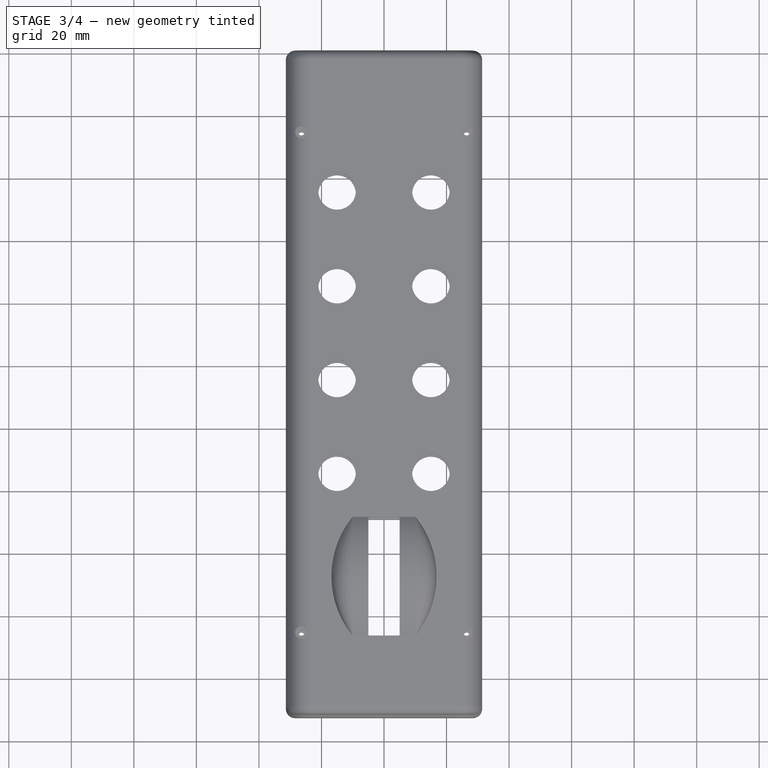
[diagram: stage 3 of 4 — top view after this stage's code; geometry added in this stage tinted green]
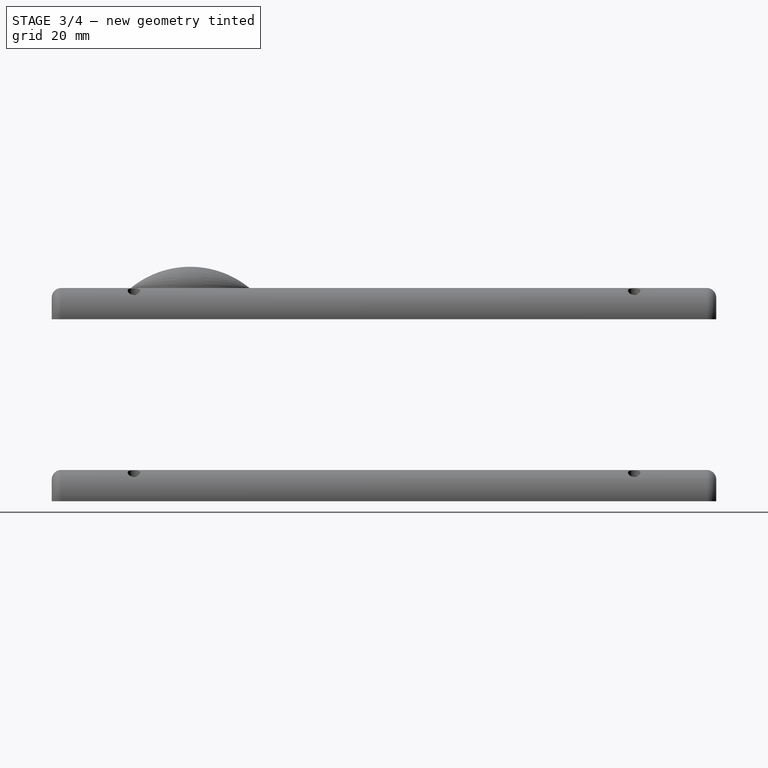
[diagram: stage 3 of 4 — right view after this stage's code; geometry added in this stage tinted green]
FEATURE [Sketcher::SketchObject] Sketch005
  ExternalGeometry = -> [Sketch003]
  FullyConstrained = true
  MapMode = 5
  Placement = pos=(0,0,1.2153e-11) rot=(1,0,0;3.14159rad)
  Support = -> [Pad001]
  sketch-geometry (11):
    g0: LineSegment StartX=-31.4 StartY=191.25 StartZ=0 EndX=-1.0374e-12 EndY=191.25 EndZ=0
    g1: LineSegment StartX=-1.0374e-12 StartY=191.25 StartZ=0 EndX=31.4 EndY=191.25 EndZ=0
    g2: LineSegment StartX=-1.0374e-12 StartY=191.25 StartZ=0 EndX=-1.0374e-12 EndY=177.25 EndZ=0
    g3: LineSegment StartX=-1.0374e-12 StartY=159.25 StartZ=0 EndX=-1.0374e-12 EndY=141.25 EndZ=0
    g4: LineSegment StartX=-1.0374e-12 StartY=141.25 StartZ=0 EndX=-15 EndY=141.25 EndZ=0
    g5: LineSegment StartX=-1.0374e-12 StartY=141.25 StartZ=0 EndX=15 EndY=141.25 EndZ=0
    g6: LineSegment StartX=-15 StartY=141.25 StartZ=0 EndX=-15 EndY=135 EndZ=0
    g7: LineSegment StartX=15 StartY=141.25 StartZ=0 EndX=15 EndY=135 EndZ=0
    g8: Circle CenterX=-15 CenterY=135 CenterZ=0 NormalX=0 NormalY=0 NormalZ=1 AngleXU=0 Radius=6
    g9: Circle CenterX=15 CenterY=135 CenterZ=0 NormalX=0 NormalY=0 NormalZ=1 AngleXU=0 Radius=6
    g10: LineSegment StartX=-1.0374e-12 StartY=177.25 StartZ=0 EndX=-1.0374e-12 EndY=159.25 EndZ=0
  constraints (30):
    c: Coincident(g0,g-3)
    c: Coincident(g1,g0)
    c: Coincident(g1,g-3)
    c: Equal(g1,g0)
    c: Horizontal(g1)
    c: Coincident(g2,g0)
    c: Vertical(g2)
    c: DistanceY(g2,g2) = 14
    c: Vertical(g3)
    c: DistanceY(g3,g2) = 18
    c: Coincident(g4,g3)
    c: Horizontal(g4)
    c: Coincident(g5,g3)
    c: Horizontal(g5)
    c: Equal(g4,g5)
    c: DistanceX(g4,g5) = 30
    c: Coincident(g6,g4)
    c: Vertical(g6)
    c: Coincident(g7,g5)
    c: Vertical(g7)
    c: Equal(g6,g7)
    c: DistanceY(g6,g6) = 6.25
    c: Coincident(g8,g6)
    c: Coincident(g9,g7)
    c: Equal(g9,g8)
    c: Diameter(g8) = 12
    c: Coincident(g2,g10)
    c: Coincident(g3,g10)
    c: Vertical(g10)
    c: Equal(g10,g3)
FEATURE [PartDesign::Pocket] Pocket001
  BaseFeature = -> Pad001
  Direction = (1,1,1)
  Length = 5
  Length2 = 100
  Profile = -> Sketch005
  Type = 1
FEATURE [PartDesign::LinearPattern] LinearPattern
  BaseFeature = -> Pocket001
  Direction = -> Y_Axis
  Length = 90
  Occurrences = 3
  Originals = -> [Pocket001]
  Overlap = 0
FEATURE [Sketcher::SketchObject] Sketch006
  ExternalGeometry = -> [Sketch005]
  FullyConstrained = true
  MapMode = 5
  Placement = pos=(0,0,10) rot=(0,0,1;0rad)
  Support = -> [LinearPattern]
  sketch-geometry (10):
    g0: LineSegment StartX=15 StartY=-135 StartZ=0 EndX=-15 EndY=-135 EndZ=0
    g1: LineSegment StartX=0 StartY=-135 StartZ=0 EndX=0 EndY=-147.125 EndZ=0
    g2: LineSegment StartX=0 StartY=-147.125 StartZ=0 EndX=0 EndY=-159.25 EndZ=0
    g3: LineSegment StartX=0 StartY=-159.25 StartZ=0 EndX=0 EndY=-168.25 EndZ=0
    g4: LineSegment StartX=10 StartY=-178.25 StartZ=0 EndX=-10 EndY=-178.25 EndZ=0
    g5: LineSegment StartX=-10 StartY=-178.25 StartZ=0 EndX=-10 EndY=-158.25 EndZ=0
    g6: LineSegment StartX=-10 StartY=-158.25 StartZ=0 EndX=10 EndY=-158.25 EndZ=0
    g7: LineSegment StartX=10 StartY=-158.25 StartZ=0 EndX=10 EndY=-178.25 EndZ=0
    g8: LineSegment StartX=10 StartY=-178.25 StartZ=0 EndX=0 EndY=-168.25 EndZ=0
    g9: LineSegment StartX=0 StartY=-168.25 StartZ=0 EndX=-10 EndY=-158.25 EndZ=0
  constraints (28):
    c: Coincident(g0,g-3)
    c: Coincident(g0,g-4)
    c: PointOnObject(g1,g0)
    c: Vertical(g1)
    c: PointOnObject(g1,g-2)
    c: Coincident(g2,g1)
    c: Vertical(g2)
    c: Coincident(g3,g2)
    c: Vertical(g3)
    c: Coincident(g4,g5)
    c: Coincident(g5,g6)
    c: Coincident(g6,g7)
    c: Coincident(g7,g4)
    c: Horizontal(g4)
    c: Horizontal(g6)
    c: Vertical(g5)
    c: Vertical(g7)
    c: Coincident(g8,g4)
    c: Coincident(g8,g3)
    c: Coincident(g9,g3)
    c: Coincident(g9,g5)
    c: Equal(g9,g8)
    c: Parallel(g8,g9)
    c: DistanceY(g7,g7) = 20
    c: DistanceY(g3,g3) = 9
    c: DistanceY(g2,g1) = 24.25
    c: Equal(g1,g2)
    c: Equal(g7,g4)
FEATURE [PartDesign::Pocket] Pocket002
  BaseFeature = -> LinearPattern
  Direction = (1,1,1)
  Length = 5
  Length2 = 100
  Profile = -> Sketch006
  Type = 1
FEATURE [Sketcher::SketchObject] Sketch007
  ExternalGeometry = -> [Pocket002]
  FullyConstrained = true
  MapMode = 5
  Placement = pos=(0,0,10) rot=(0,0,1;0rad)
  Support = -> [Pocket002]
  sketch-geometry (8):
    g0: LineSegment StartX=-5 StartY=-149.25 StartZ=0 EndX=5 EndY=-149.25 EndZ=0
    g1: LineSegment StartX=5 StartY=-149.25 StartZ=0 EndX=5 EndY=-187.25 EndZ=0
    g2: LineSegment StartX=5 StartY=-187.25 StartZ=0 EndX=-5 EndY=-187.25 EndZ=0
    g3: LineSegment StartX=-5 StartY=-187.25 StartZ=0 EndX=-5 EndY=-149.25 EndZ=0
    g4: LineSegment StartX=-10 StartY=-158.25 StartZ=0 EndX=0 EndY=-168.25 EndZ=0
    g5: LineSegment StartX=-7e-16 StartY=-168.25 StartZ=0 EndX=10 EndY=-178.25 EndZ=0
    g6: LineSegment StartX=-5 StartY=-187.25 StartZ=0 EndX=-9e-16 EndY=-168.25 EndZ=0
    g7: LineSegment StartX=-7e-16 StartY=-168.25 StartZ=0 EndX=5 EndY=-149.25 EndZ=0
  constraints (21):
    c: Coincident(g0,g1)
    c: Coincident(g1,g2)
    c: Coincident(g2,g3)
    c: Coincident(g3,g0)
    c: Horizontal(g0)
    c: Horizontal(g2)
    c: Vertical(g1)
    c: Vertical(g3)
    c: DistanceY(g3,g3) = 38
    c: DistanceX(g0,g0) = 10
    c: Coincident(g4,g-3)
    c: Coincident(g5,g4)
    c: Coincident(g5,g-6)
    c: Equal(g5,g4)
    c: Parallel(g5,g4)
    c: Coincident(g6,g2)
    c: Coincident(g6,g4)
    c: Coincident(g7,g4)
    c: Coincident(g7,g0)
    c: Parallel(g7,g6)
    c: Equal(g6,g7)
FEATURE [PartDesign::Pocket] Pocket003
  BaseFeature = -> Pocket002
  Direction = (1,1,1)
  Length = 5
  Length2 = 100
  Profile = -> Sketch007
  Type = 1
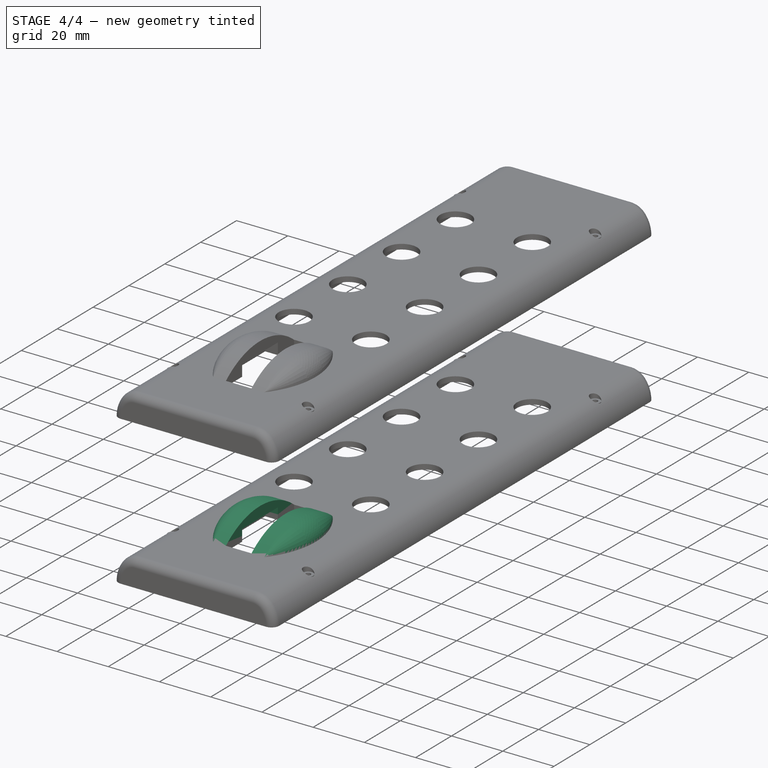
[diagram: stage 4 of 4 — iso view after this stage's code; geometry added in this stage tinted green]
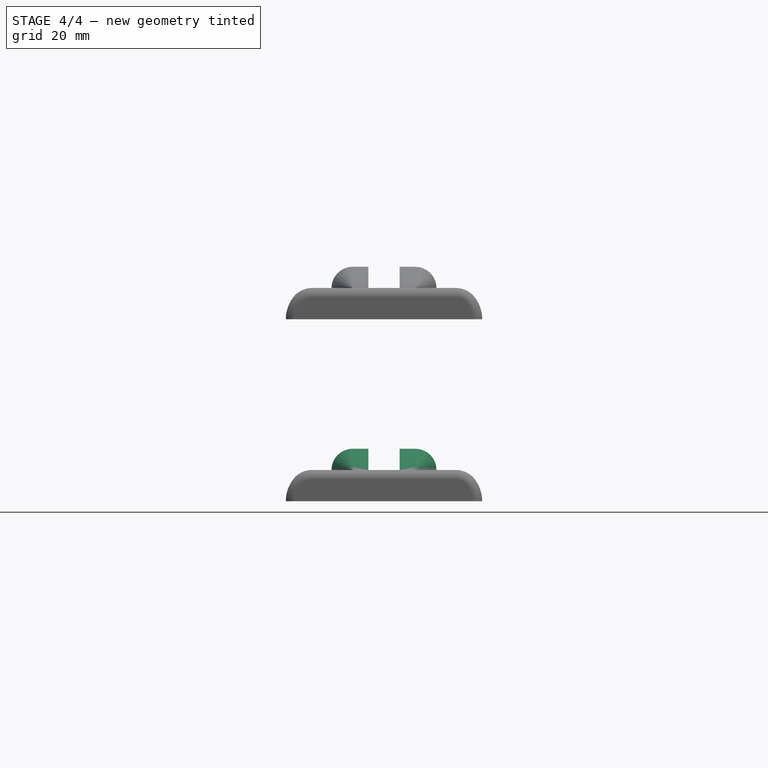
[diagram: stage 4 of 4 — front view after this stage's code; geometry added in this stage tinted green]
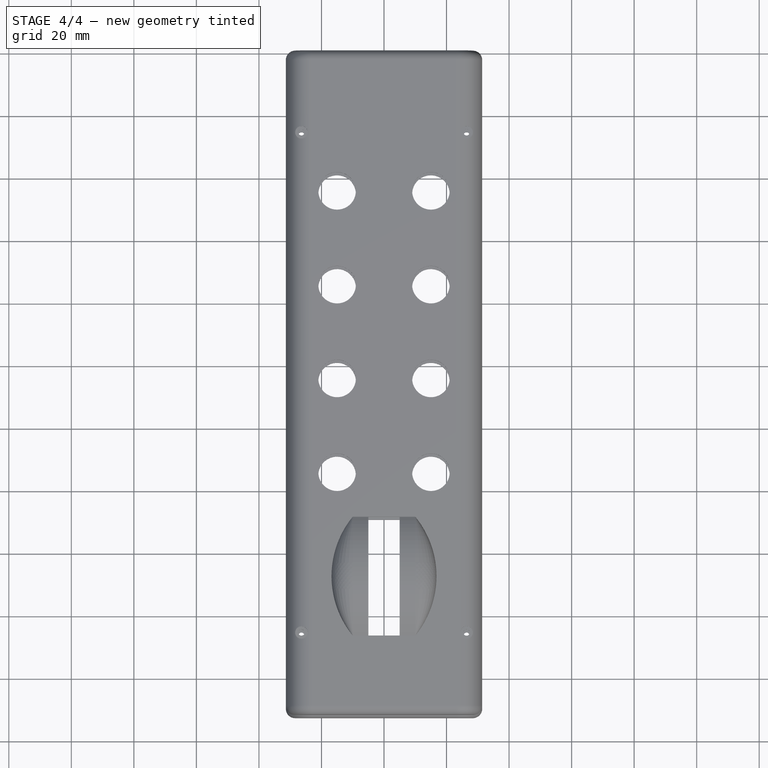
[diagram: stage 4 of 4 — top view after this stage's code; geometry added in this stage tinted green]
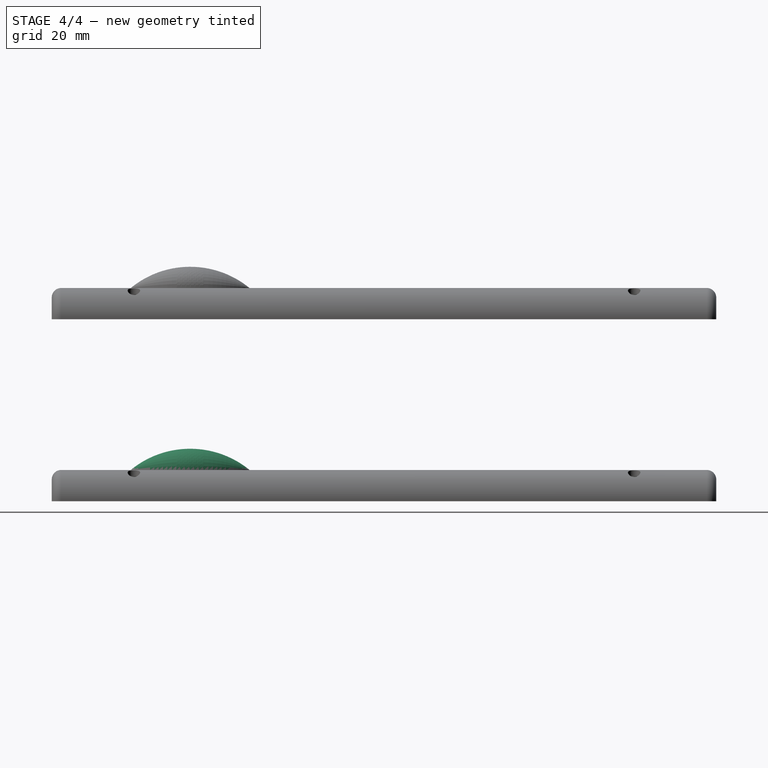
[diagram: stage 4 of 4 — right view after this stage's code; geometry added in this stage tinted green]
FEATURE [Sketcher::SketchObject] Sketch008
  ExternalGeometry = -> [Pocket003]
  FullyConstrained = true
  MapMode = 5
  Placement = pos=(-5,0,0) rot=(0.57735,0.57735,0.57735;2.0944rad)
  Support = -> [Pocket003]
  sketch-geometry (7):
    g0: LineSegment StartX=-178.25 StartY=10 StartZ=0 EndX=-178.25 EndY=12.5 EndZ=0
    g1: ArcOfCircle CenterX=-168.25 CenterY=-13.2164 CenterZ=0 NormalX=0 NormalY=0 NormalZ=1 AngleXU=0 Radius=30 StartAngle=0.884943 EndAngle=2.25665
    g2: LineSegment StartX=-187.25 StartY=10 StartZ=0 EndX=-178.25 EndY=10 EndZ=0
    g3: LineSegment StartX=-178.25 StartY=10 StartZ=0 EndX=-178.25 EndY=12.5 EndZ=0
    g4: LineSegment StartX=-178.25 StartY=12.5 StartZ=0 EndX=-158.25 EndY=12.5 EndZ=0
    g5: LineSegment StartX=-158.25 StartY=12.5 StartZ=0 EndX=-158.25 EndY=10 EndZ=0
    g6: LineSegment StartX=-158.25 StartY=10 StartZ=0 EndX=-149.25 EndY=10 EndZ=0
  constraints (17):
    c: Coincident(g0,g-4)
    c: Vertical(g0)
    c: DistanceY(g0,g0) = 2.5
    c: Coincident(g1,g-4)
    c: Coincident(g1,g-3)
    c: Coincident(g2,g1)
    c: Coincident(g2,g0)
    c: Coincident(g3,g2)
    c: Coincident(g4,g3)
    c: Horizontal(g4)
    c: Coincident(g5,g4)
    c: Coincident(g5,g-3)
    c: Coincident(g6,g5)
    c: Coincident(g6,g1)
    c: Vertical(g5)
    c: Coincident(g3,g0)
    c: Radius(g1) = 30
FEATURE [PartDesign::Pad] Pad002
  BaseFeature = -> Pocket003
  Direction = (1,0,0)
  Length = 6
  Length2 = 100
  Profile = -> Sketch008
  Reversed = true
  Type = 3
  UpToFace = -> Pocket003 [Face74]
FEATURE [Sketcher::SketchObject] Sketch009
  ExternalGeometry = -> [Pad002]
  FullyConstrained = true
  MapMode = 5
  Placement = pos=(-10,0,0) rot=(0.57735,-0.57735,-0.57735;2.0944rad)
  Support = -> [Pad002]
  sketch-geometry (3):
    g0: LineSegment StartX=149.25 StartY=10 StartZ=0 EndX=187.25 EndY=10 EndZ=0
    g1: ArcOfCircle CenterX=168.25 CenterY=-13.2164 CenterZ=0 NormalX=0 NormalY=0 NormalZ=1 AngleXU=0 Radius=30 StartAngle=0.884943 EndAngle=2.25665
    g2: LineSegment StartX=149.25 StartY=10 StartZ=0 EndX=187.25 EndY=10 EndZ=0
  constraints (7):
    c: Coincident(g0,g-4)
    c: Coincident(g0,g-3)
    c: Coincident(g1,g0)
    c: Coincident(g1,g0)
    c: Tangent(g-5,g1)
    c: Coincident(g2,g0)
    c: Coincident(g2,g0)
FEATURE [PartDesign::Revolution] Revolution
  Angle = 90
  Axis = (0,-38,0)
  Base = (-10,-149.25,10)
  BaseFeature = -> Pad002
  Profile = -> Sketch009
  ReferenceAxis = -> Sketch009 [Axis0]
FEATURE [PartDesign::Mirrored] Mirrored
  BaseFeature = -> Revolution
  MirrorPlane = -> YZ_Plane
  Originals = -> [Pad002,Revolution]
  Overlap = 0
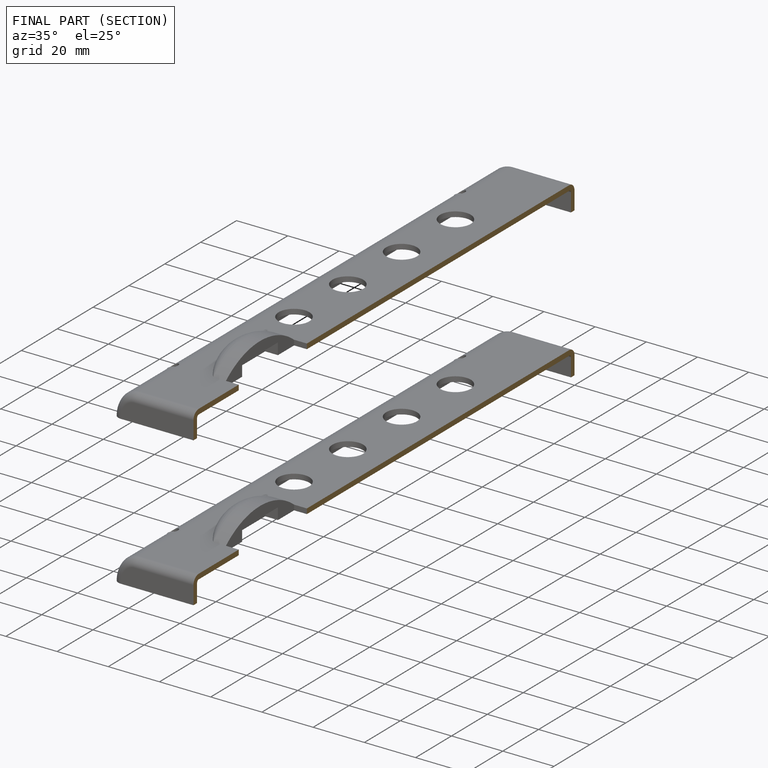
[diagram: finished part — half-section view (interior)]
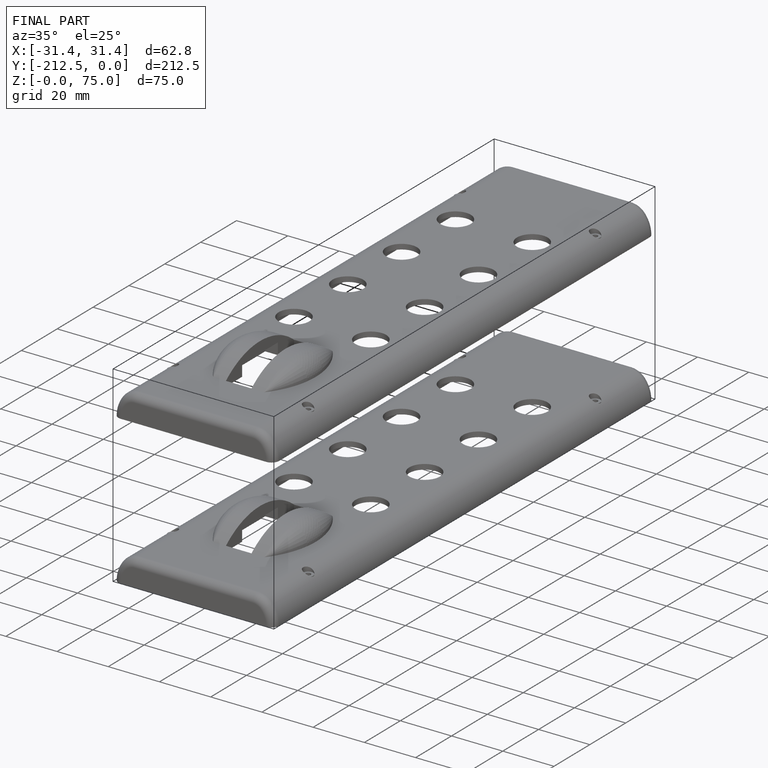
[diagram: finished part — iso view with bounding-box wireframe]
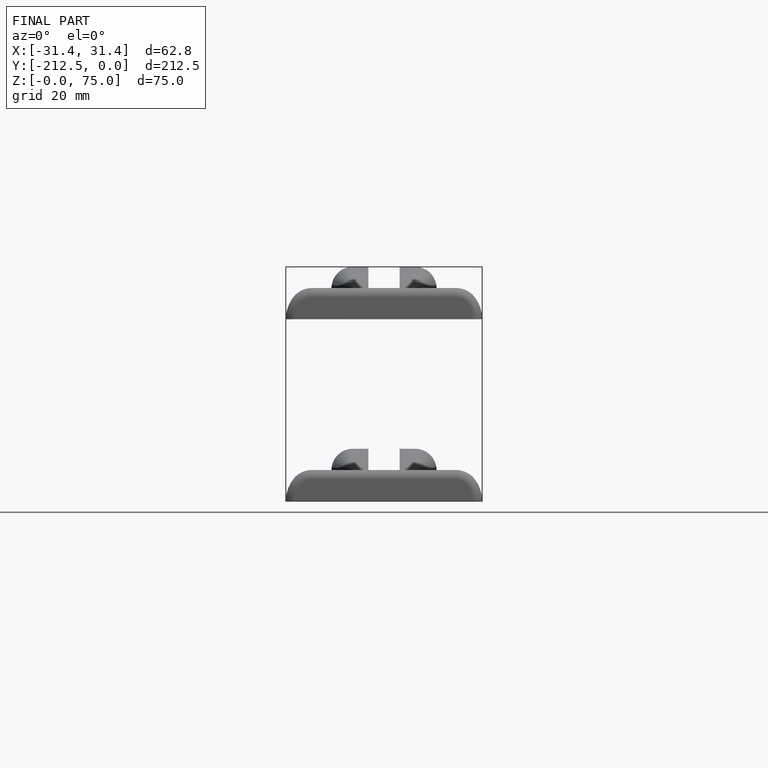
[diagram: finished part — front view with bounding-box wireframe]
